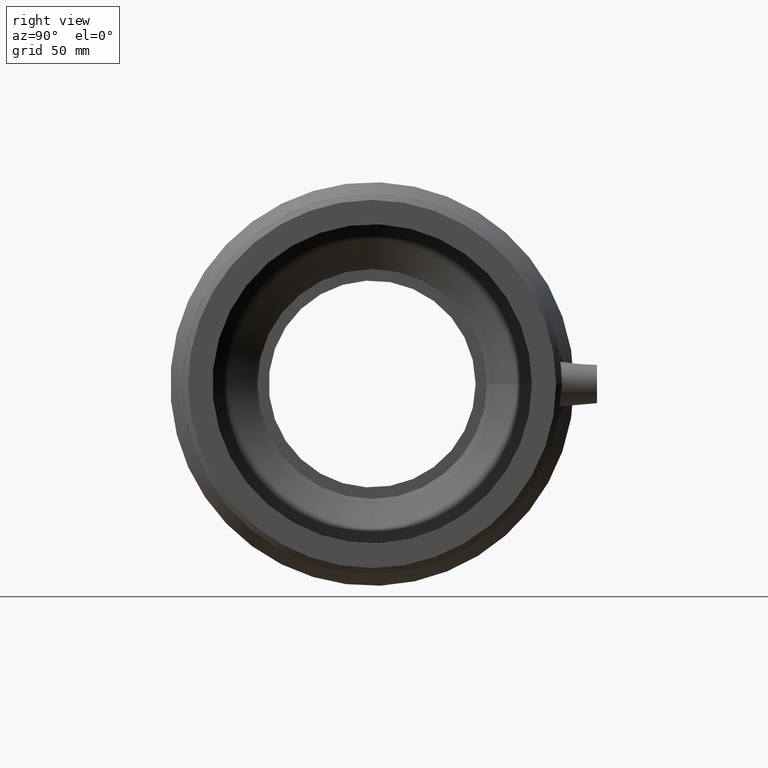
[diagram: clean part render]
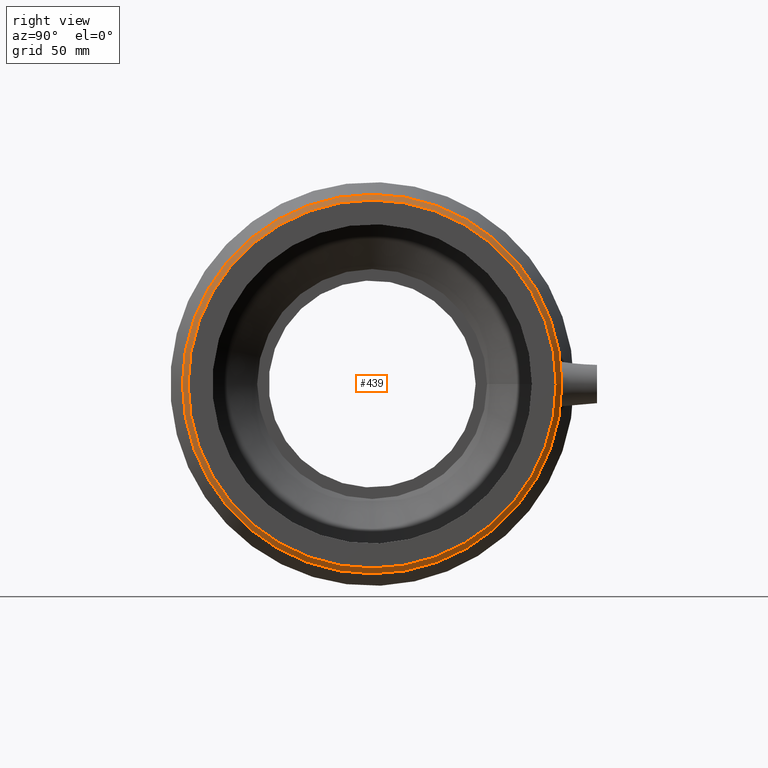
[diagram: same view with one face highlighted and labeled with its STEP entity id]
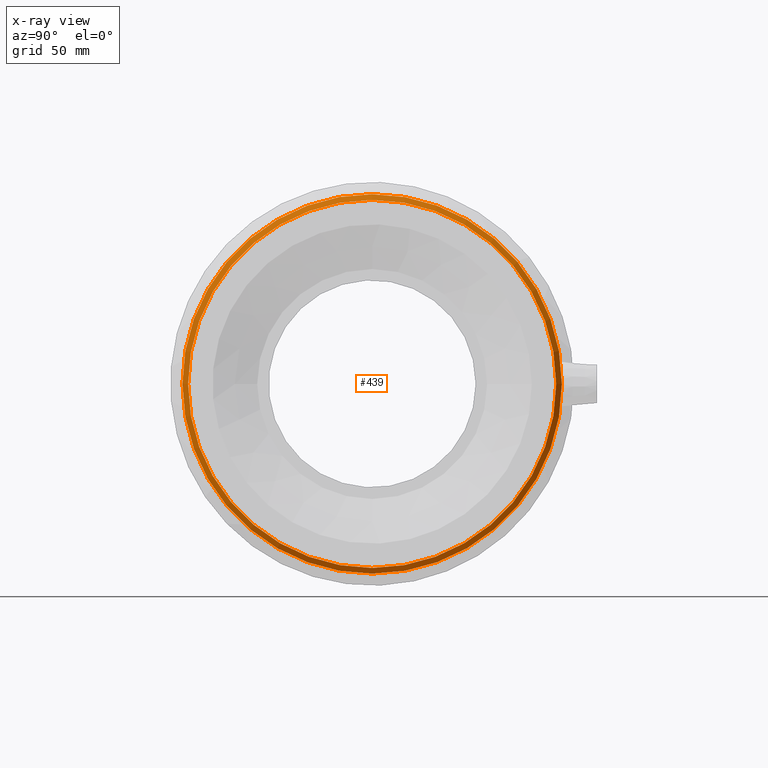
[diagram: x-ray of the same camera — body ghosted, the highlighted face saturated]
A machine part, right view. The second image highlights one B-rep face of the part: STEP entity #439.
The next image is the same camera in x-ray: the body ghosted, the highlighted face saturated — about 0% of this face is hidden behind the body in this view.
In plain terms, the highlighted conical surface has half-angle 45 deg.
Its self-contained STEP definition (entity closure, byte-faithful):
#28=CONICAL_SURFACE('',#504,73.1461,45.);
#55=FACE_BOUND('',#172,.T.);
#109=FACE_OUTER_BOUND('',#171,.T.);
#171=EDGE_LOOP('',(#374));
#172=EDGE_LOOP('',(#375));
#222=CIRCLE('',#503,74.26);
#223=CIRCLE('',#505,72.0322);
#262=VERTEX_POINT('',#843);
#263=VERTEX_POINT('',#846);
#304=EDGE_CURVE('',#262,#262,#222,.T.);
#305=EDGE_CURVE('',#263,#263,#223,.T.);
#374=ORIENTED_EDGE('',*,*,#304,.T.);
#375=ORIENTED_EDGE('',*,*,#305,.F.);
#439=ADVANCED_FACE('',(#109,#55),#28,.T.);
#503=AXIS2_PLACEMENT_3D('',#844,#629,#630);
#504=AXIS2_PLACEMENT_3D('',#845,#631,#632);
#505=AXIS2_PLACEMENT_3D('',#847,#633,#634);
#629=DIRECTION('center_axis',(1.,0.,0.));
#630=DIRECTION('ref_axis',(0.,0.,-1.));
#631=DIRECTION('center_axis',(-1.,0.,0.));
#632=DIRECTION('ref_axis',(0.,1.,0.));
#633=DIRECTION('center_axis',(1.,0.,0.));
#634=DIRECTION('ref_axis',(0.,0.,-1.));
#843=CARTESIAN_POINT('',(83.2722,74.26,0.));
#844=CARTESIAN_POINT('Origin',(83.2722,0.,0.));
#845=CARTESIAN_POINT('Origin',(84.3861,0.,0.));
#846=CARTESIAN_POINT('',(85.5,72.0322,0.));
#847=CARTESIAN_POINT('Origin',(85.5,0.,0.));